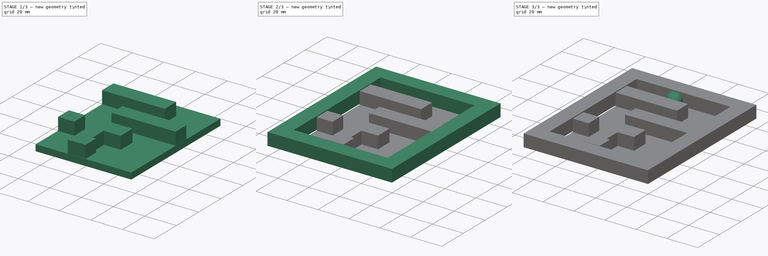
[diagram: build sequence overview — one tinted view per stage of 3, left to right]
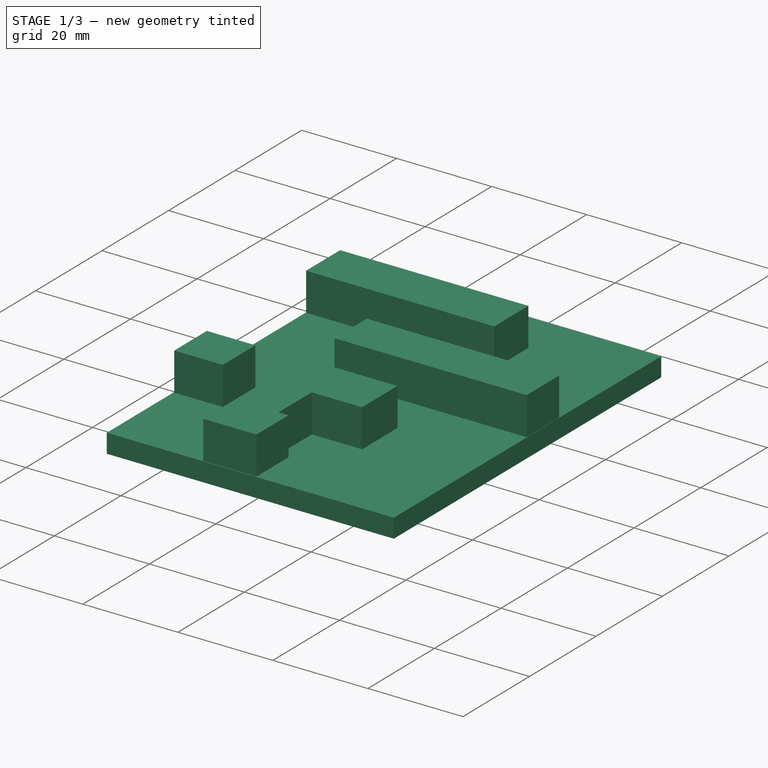
[diagram: stage 1 of 3 — iso view after this stage's code; geometry added in this stage tinted green]
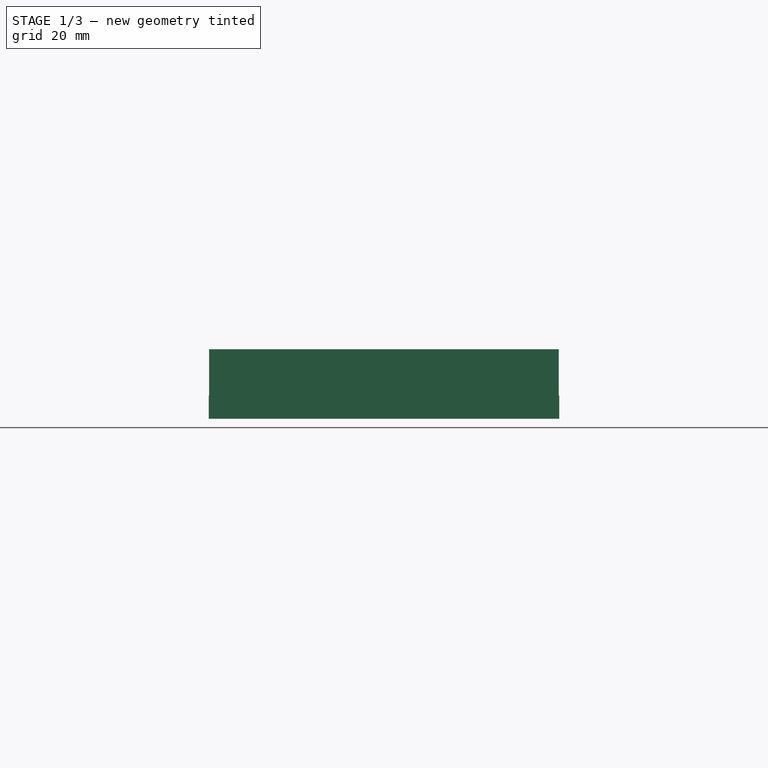
[diagram: stage 1 of 3 — front view after this stage's code; geometry added in this stage tinted green]
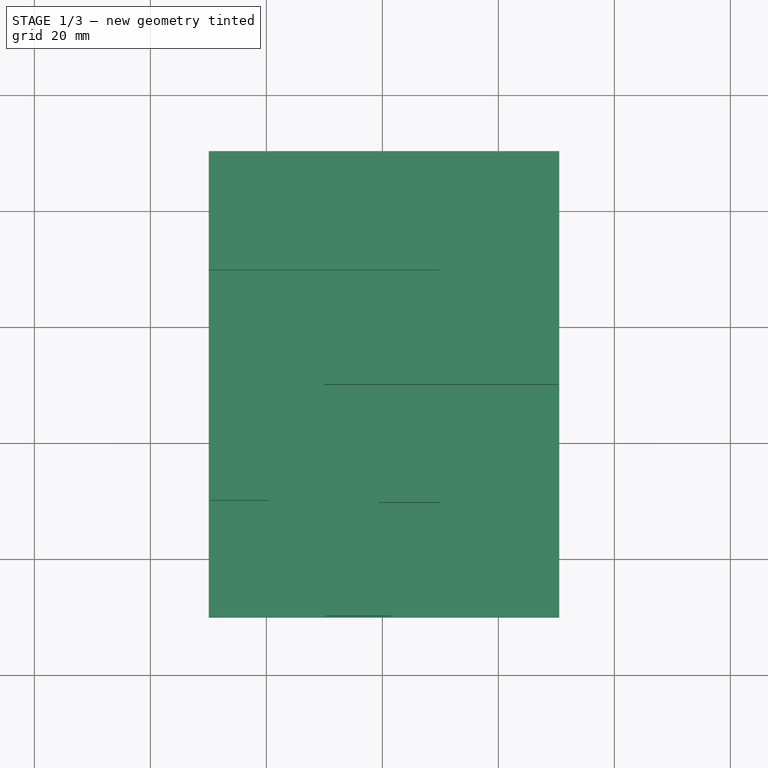
[diagram: stage 1 of 3 — top view after this stage's code; geometry added in this stage tinted green]
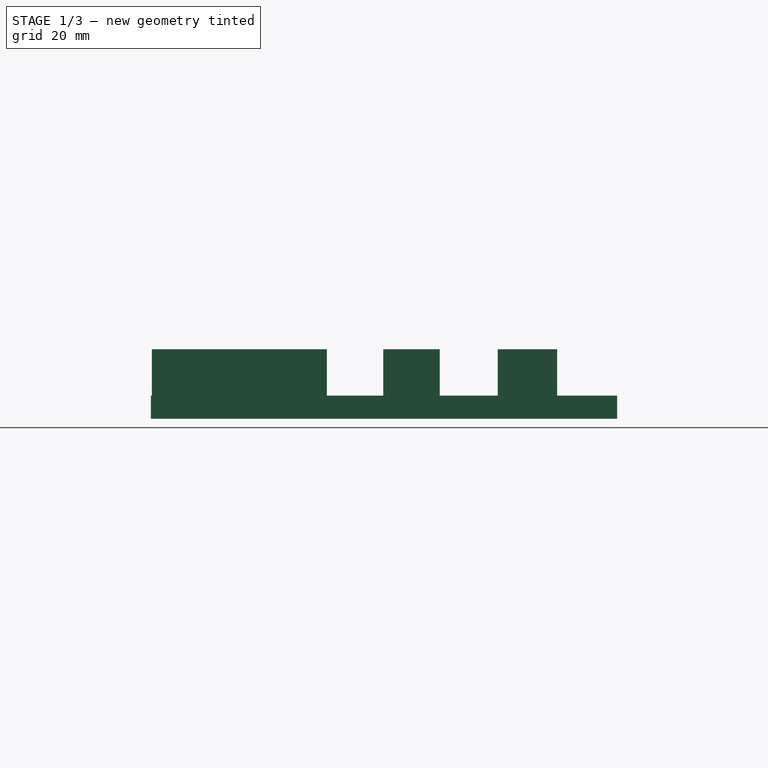
[diagram: stage 1 of 3 — right view after this stage's code; geometry added in this stage tinted green]
FCSTD DOCUMENT  (FreeCAD 0.21R33694 (Git))
Label: OJT1_T017_R03_ laberin
License: All rights reserved
LicenseURL: http://en.wikipedia.org/wiki/All_rights_reserved
objects: Sketcher::SketchObject×4, PartDesign::Pad×3, Part::Sphere×1, PartDesign::Pocket×1, PartDesign::SubShapeBinder×1, PartDesign::Body×1
note: 15 computed .brp shape members not serialized (recipe doc carries the construction recipe); baked Part::Feature solids carry a one-line shape summary decoded from their .brp

FEATURE [Sketcher::SketchObject] Sketch
  FullyConstrained = false
  MapMode = 5
  Support = -> [XY_Plane]
  sketch-geometry (4):
    g0: LineSegment StartX=-29.9305 StartY=30.324 StartZ=0 EndX=30.4857 EndY=30.324 EndZ=0
    g1: LineSegment StartX=30.4857 StartY=30.324 StartZ=0 EndX=30.4857 EndY=-50.0625 EndZ=0
    g2: LineSegment StartX=30.4857 StartY=-50.0625 StartZ=0 EndX=-29.9305 EndY=-50.0625 EndZ=0
    g3: LineSegment StartX=-29.9305 StartY=-50.0625 StartZ=0 EndX=-29.9305 EndY=30.324 EndZ=0
  constraints (8):
    c: Horizontal(g0)
    c: Coincident(g0,g1)
    c: Vertical(g1)
    c: Coincident(g1,g2)
    c: Horizontal(g2)
    c: Coincident(g2,g3)
    c: Coincident(g3,g0)
    c: Vertical(g3)
FEATURE [PartDesign::Pad] Pad
  Direction = (0,0,1)
  Length = 4
  Length2 = 10
  Profile = -> Sketch
  ReferenceAxis = -> Sketch [N_Axis]
  Type = 0
FEATURE [Sketcher::SketchObject] Sketch001
  FullyConstrained = false
  MapMode = 5
  Placement = pos=(0,0,4) rot=(0,0,1;0rad)
  Support = -> [Pad]
  sketch-geometry (20):
    g0: LineSegment StartX=-29.8639 StartY=19.9841 StartZ=0 EndX=9.75714 EndY=19.9841 EndZ=0
    g1: LineSegment StartX=9.75714 StartY=19.9841 StartZ=0 EndX=9.75714 EndY=9.75183 EndZ=0
    g2: LineSegment StartX=9.75714 StartY=9.75183 StartZ=0 EndX=-29.8639 EndY=9.75183 EndZ=0
    g3: LineSegment StartX=-29.8639 StartY=9.75183 StartZ=0 EndX=-29.8639 EndY=19.9841 EndZ=0
    g4: LineSegment StartX=30.4033 StartY=-0.265721 StartZ=0 EndX=-10.0469 EndY=-0.265721 EndZ=0
    g5: LineSegment StartX=-10.0469 StartY=-0.265721 StartZ=0 EndX=-10.0469 EndY=-9.99901 EndZ=0
    g6: LineSegment StartX=-10.0469 StartY=-9.99901 StartZ=0 EndX=30.4033 EndY=-9.99901 EndZ=0
    g7: LineSegment StartX=30.4033 StartY=-9.99901 StartZ=0 EndX=30.4033 EndY=-0.265721 EndZ=0
    g8: LineSegment StartX=-9.73698 StartY=-49.9008 StartZ=0 EndX=-9.73698 EndY=-19.728 EndZ=0
    g9: LineSegment StartX=-9.73698 StartY=-19.728 StartZ=0 EndX=10.0099 EndY=-19.728 EndZ=0
    g10: LineSegment StartX=10.0099 StartY=-19.728 StartZ=0 EndX=10.0099 EndY=-30.3451 EndZ=0
    g11: LineSegment StartX=10.0099 StartY=-30.3451 StartZ=0 EndX=-0.607156 EndY=-30.3451 EndZ=0
    g12: LineSegment StartX=-0.607156 StartY=-30.3451 StartZ=0 EndX=-0.607156 EndY=-40.2859 EndZ=0
    g13: LineSegment StartX=-0.607156 StartY=-40.2859 StartZ=0 EndX=1.47293 EndY=-40.2859 EndZ=0
    g14: LineSegment StartX=1.47293 StartY=-40.2859 StartZ=0 EndX=1.47293 EndY=-49.9008 EndZ=0
    g15: LineSegment StartX=1.47293 StartY=-49.9008 StartZ=0 EndX=-9.73698 EndY=-49.9008 EndZ=0
    g16: LineSegment StartX=-29.7993 StartY=-20.1779 StartZ=0 EndX=-19.5662 EndY=-20.1779 EndZ=0
    g17: LineSegment StartX=-19.5662 StartY=-20.1779 StartZ=0 EndX=-19.5662 EndY=-29.9765 EndZ=0
    g18: LineSegment StartX=-19.5662 StartY=-29.9765 StartZ=0 EndX=-29.7993 EndY=-29.9765 EndZ=0
    g19: LineSegment StartX=-29.7993 StartY=-29.9765 StartZ=0 EndX=-29.7993 EndY=-20.1779 EndZ=0
  constraints (40):
    c: Horizontal(g0)
    c: Coincident(g0,g1)
    c: Vertical(g1)
    c: Coincident(g1,g2)
    c: Horizontal(g2)
    c: Coincident(g2,g3)
    c: Coincident(g3,g0)
    c: Vertical(g3)
    c: Horizontal(g4)
    c: Coincident(g4,g5)
    c: Vertical(g5)
    c: Coincident(g5,g6)
    c: Horizontal(g6)
    c: Coincident(g6,g7)
    c: Coincident(g7,g4)
    c: Vertical(g7)
    c: Vertical(g8)
    c: Coincident(g8,g9)
    c: Horizontal(g9)
    c: Coincident(g9,g10)
    c: Vertical(g10)
    c: Coincident(g10,g11)
    c: Horizontal(g11)
    c: Coincident(g11,g12)
    c: Vertical(g12)
    c: Coincident(g12,g13)
    c: Horizontal(g13)
    c: Coincident(g13,g14)
    c: Vertical(g14)
    c: Coincident(g14,g15)
    c: Coincident(g15,g8)
    c: Horizontal(g15)
    c: Horizontal(g16)
    c: Coincident(g16,g17)
    c: Vertical(g17)
    c: Coincident(g17,g18)
    c: Horizontal(g18)
    c: Coincident(g18,g19)
    c: Coincident(g19,g16)
    c: Vertical(g19)
FEATURE [PartDesign::Pad] Pad001
  BaseFeature = -> Pad
  Direction = (0,0,1)
  Length = 8
  Length2 = 10
  Profile = -> Sketch001
  ReferenceAxis = -> Sketch001 [N_Axis]
  Type = 0
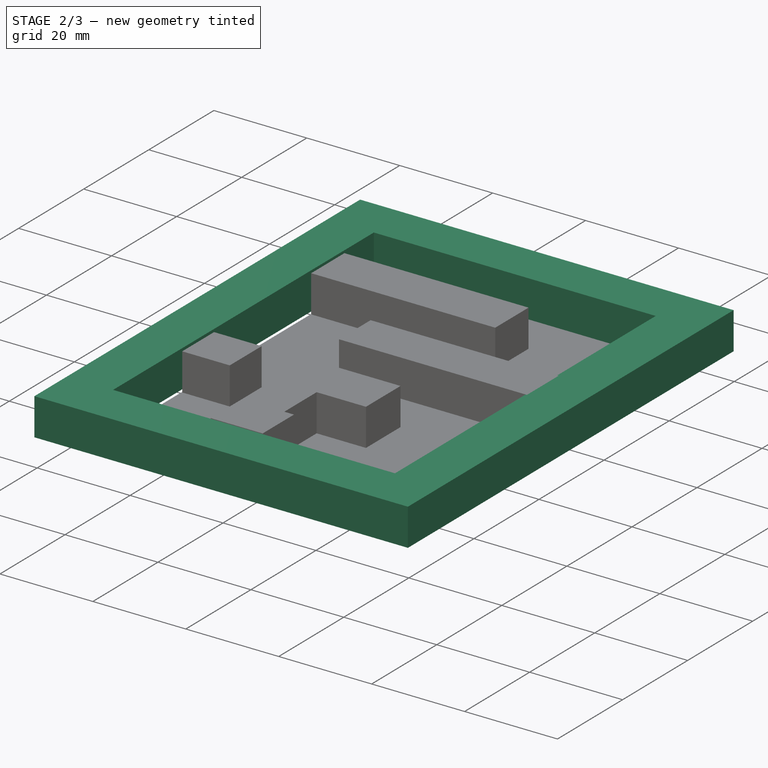
[diagram: stage 2 of 3 — iso view after this stage's code; geometry added in this stage tinted green]
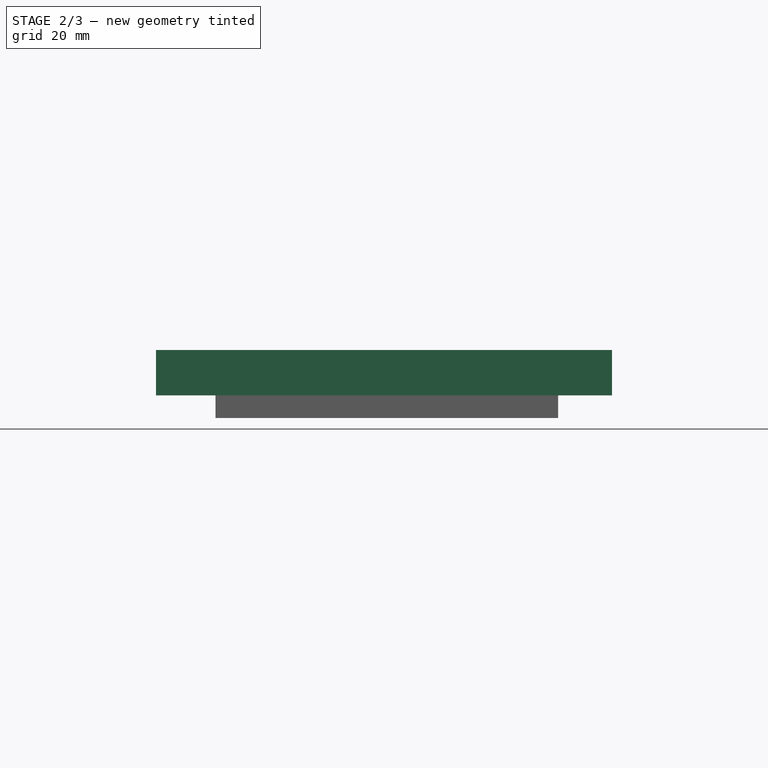
[diagram: stage 2 of 3 — front view after this stage's code; geometry added in this stage tinted green]
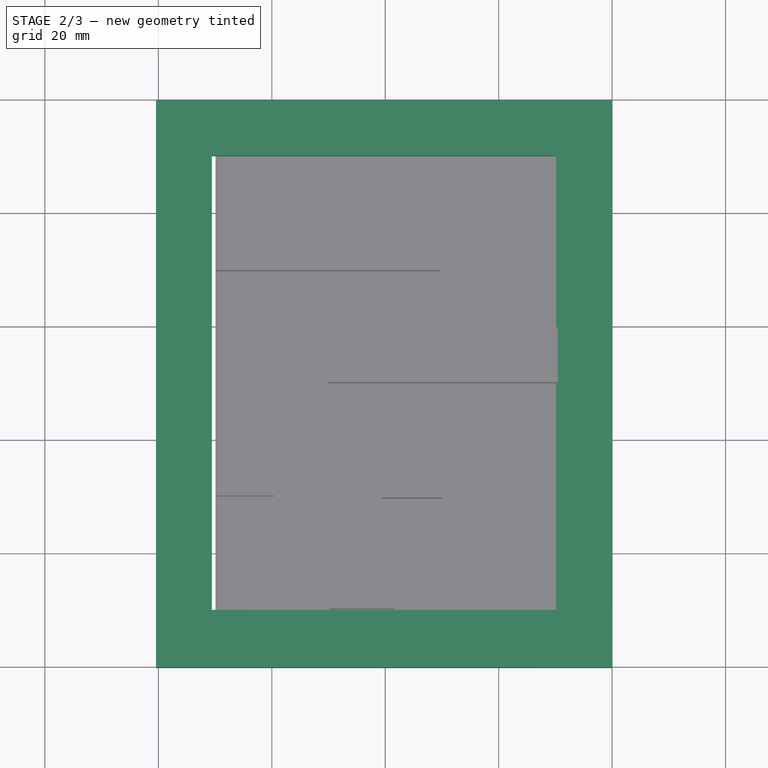
[diagram: stage 2 of 3 — top view after this stage's code; geometry added in this stage tinted green]
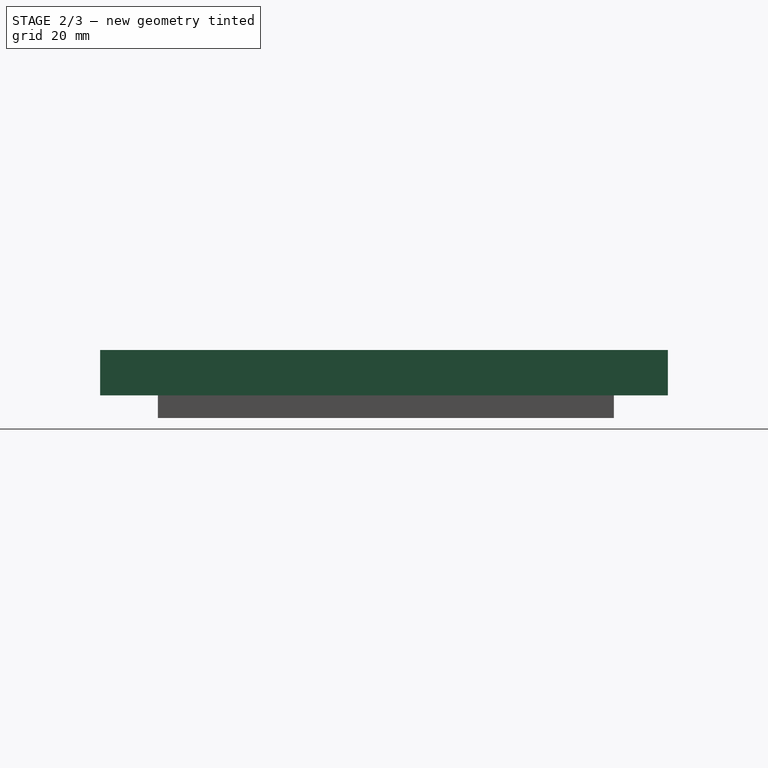
[diagram: stage 2 of 3 — right view after this stage's code; geometry added in this stage tinted green]
FEATURE [Sketcher::SketchObject] Sketch002
  FullyConstrained = false
  MapMode = 5
  Placement = pos=(0,0,4) rot=(0,0,1;0rad)
  Support = -> [Pad001]
  sketch-geometry (8):
    g0: LineSegment StartX=-40.412 StartY=39.8558 StartZ=0 EndX=-40.412 EndY=-60.2481 EndZ=0
    g1: LineSegment StartX=-40.412 StartY=-60.2481 StartZ=0 EndX=39.9744 EndY=-60.2481 EndZ=0
    g2: LineSegment StartX=39.9744 StartY=-60.2481 StartZ=0 EndX=39.9744 EndY=39.8558 EndZ=0
    g3: LineSegment StartX=39.9744 StartY=39.8558 StartZ=0 EndX=-40.412 EndY=39.8558 EndZ=0
    g4: LineSegment StartX=-30.5533 StartY=29.9971 StartZ=0 EndX=-30.5533 EndY=-50.1365 EndZ=0
    g5: LineSegment StartX=-30.5533 StartY=-50.1365 StartZ=0 EndX=30.1157 EndY=-50.1365 EndZ=0
    g6: LineSegment StartX=30.1157 StartY=-50.1365 StartZ=0 EndX=30.1157 EndY=29.9971 EndZ=0
    g7: LineSegment StartX=30.1157 StartY=29.9971 StartZ=0 EndX=-30.5533 EndY=29.9971 EndZ=0
  constraints (16):
    c: Vertical(g0)
    c: Coincident(g0,g1)
    c: Horizontal(g1)
    c: Coincident(g1,g2)
    c: Vertical(g2)
    c: Coincident(g2,g3)
    c: Coincident(g3,g0)
    c: Horizontal(g3)
    c: Vertical(g4)
    c: Coincident(g4,g5)
    c: Horizontal(g5)
    c: Coincident(g5,g6)
    c: Vertical(g6)
    c: Coincident(g6,g7)
    c: Coincident(g7,g4)
    c: Horizontal(g7)
FEATURE [PartDesign::Pad] Pad002
  BaseFeature = -> Pad001
  Direction = (0,0,1)
  Length = 8
  Length2 = 10
  Profile = -> Sketch002
  ReferenceAxis = -> Sketch002 [N_Axis]
  Type = 0
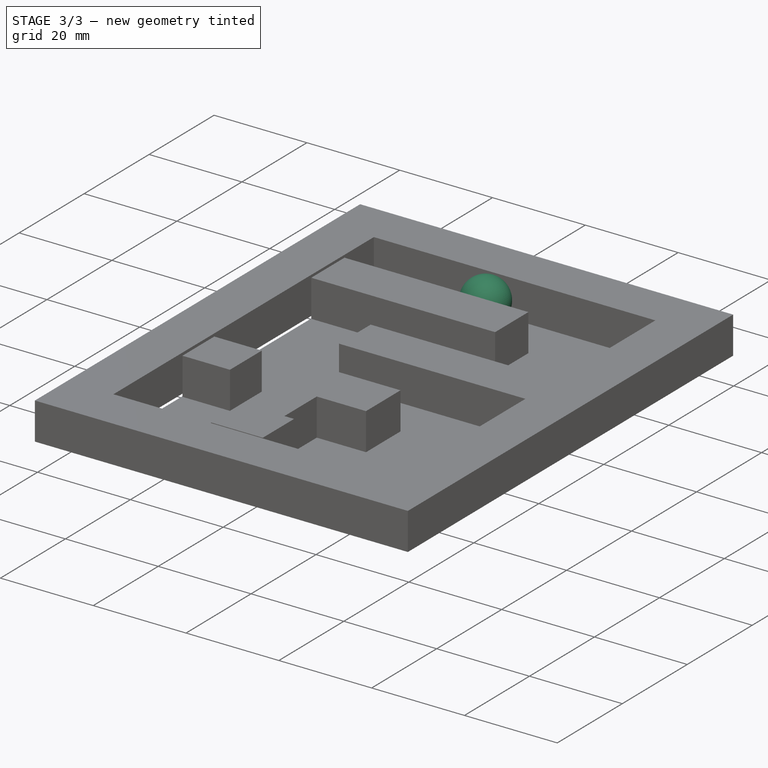
[diagram: stage 3 of 3 — iso view after this stage's code; geometry added in this stage tinted green]
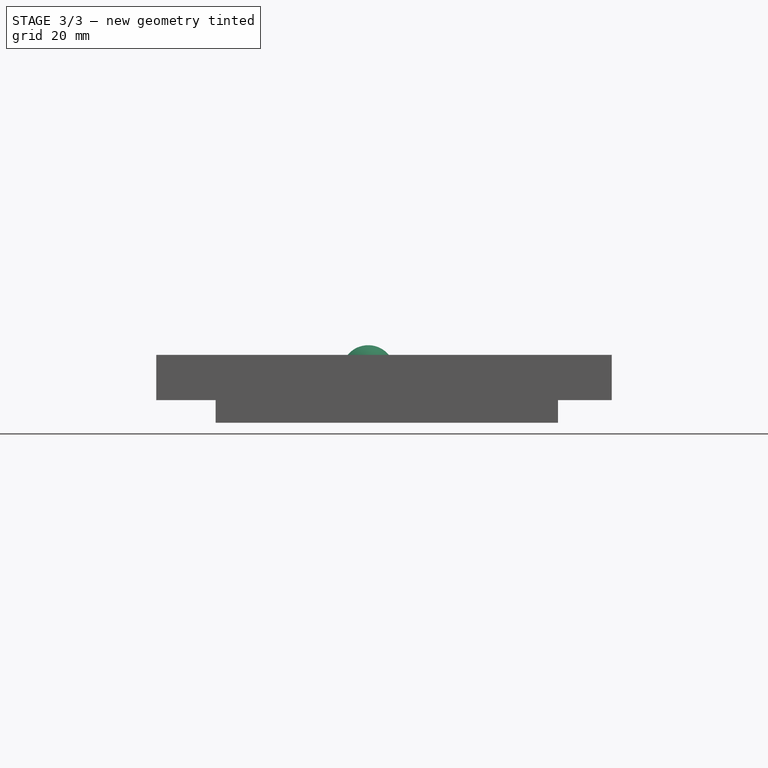
[diagram: stage 3 of 3 — front view after this stage's code; geometry added in this stage tinted green]
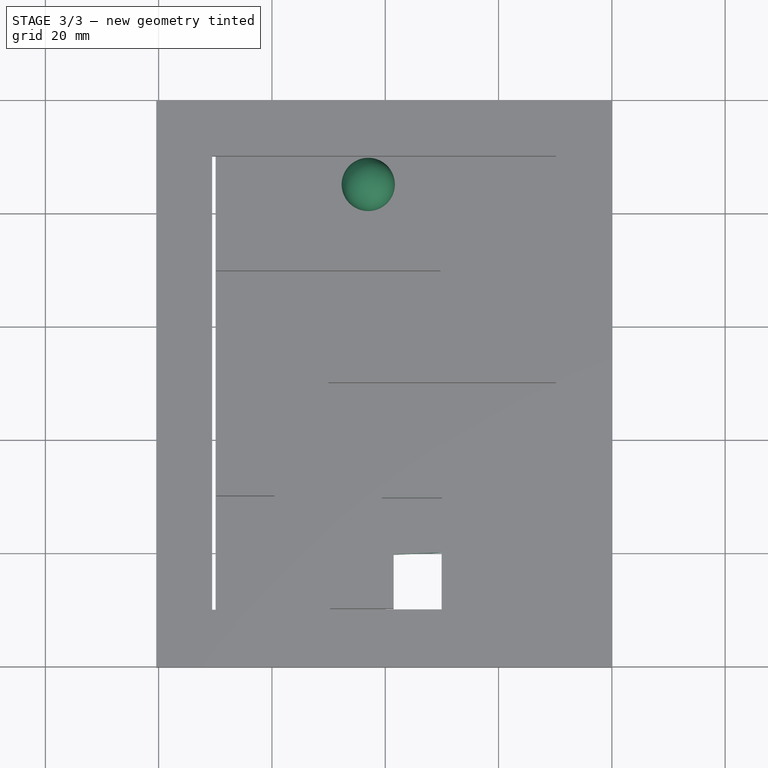
[diagram: stage 3 of 3 — top view after this stage's code; geometry added in this stage tinted green]
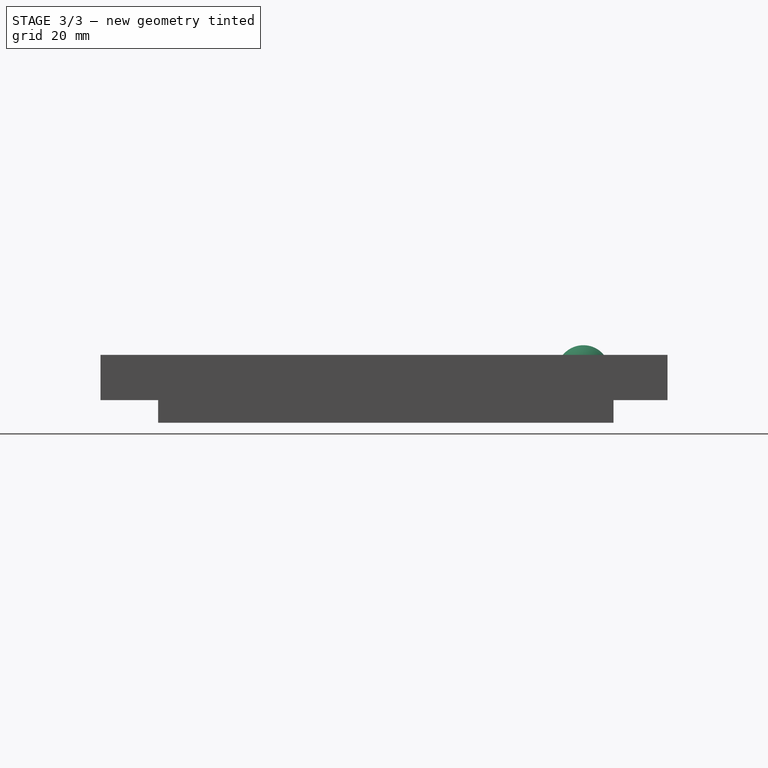
[diagram: stage 3 of 3 — right view after this stage's code; geometry added in this stage tinted green]
FEATURE [Part::Sphere] Sphere
  Angle1 = -90
  Angle2 = 90
  Angle3 = 360
  AttacherType = Attacher::AttachEngine3D
  Placement = pos=(-3,25,9) rot=(0,0,1;0rad)
  Radius = 4.7
FEATURE [Sketcher::SketchObject] Sketch003
  FullyConstrained = false
  MapMode = 5
  Placement = pos=(0,0,4) rot=(0,0,1;0rad)
  Support = -> [Pad002]
  sketch-geometry (4):
    g0: LineSegment StartX=-0.891509 StartY=-40.3464 StartZ=0 EndX=1e-16 EndY=-49.9383 EndZ=0
    g1: LineSegment StartX=1e-16 StartY=-49.9383 StartZ=0 EndX=9.95833 EndY=-49.9383 EndZ=0
    g2: LineSegment StartX=9.95833 StartY=-49.9383 StartZ=0 EndX=9.95833 EndY=-39.8747 EndZ=0
    g3: LineSegment StartX=9.95833 StartY=-39.8747 StartZ=0 EndX=-0.891509 EndY=-40.3464 EndZ=0
  constraints (7):
    c: PointOnObject(g0,g-2)
    c: Coincident(g0,g1)
    c: Horizontal(g1)
    c: Coincident(g1,g2)
    c: Vertical(g2)
    c: Coincident(g2,g3)
    c: Coincident(g3,g0)
FEATURE [PartDesign::Pocket] Pocket
  BaseFeature = -> Pad002
  Direction = (0,0,-1)
  Length = 12
  Length2 = 5
  Profile = -> Sketch003
  ReferenceAxis = -> Sketch003 [N_Axis]
  Type = 0
FEATURE [PartDesign::SubShapeBinder] Binder
  BindCopyOnChange = 0
  BindMode = 0
  ClaimChildren = false
  Context = -> Body [Binder.]
  Fuse = false
  MakeFace = true
  OffsetFill = false
  OffsetIntersection = false
  OffsetJoinType = 0
  OffsetOpenResult = false
  PartialLoad = false
  Relative = true
  Support = -> [Pocket[Face7]]
  _Version = 2
FEATURE [PartDesign::Body] Body
  Group = -> [Sketch,Pad,Sketch001,Pad001,Sketch002,Pad002,Sketch003,Pocket,Binder]
  Origin = -> Origin
  Tip = -> Pocket
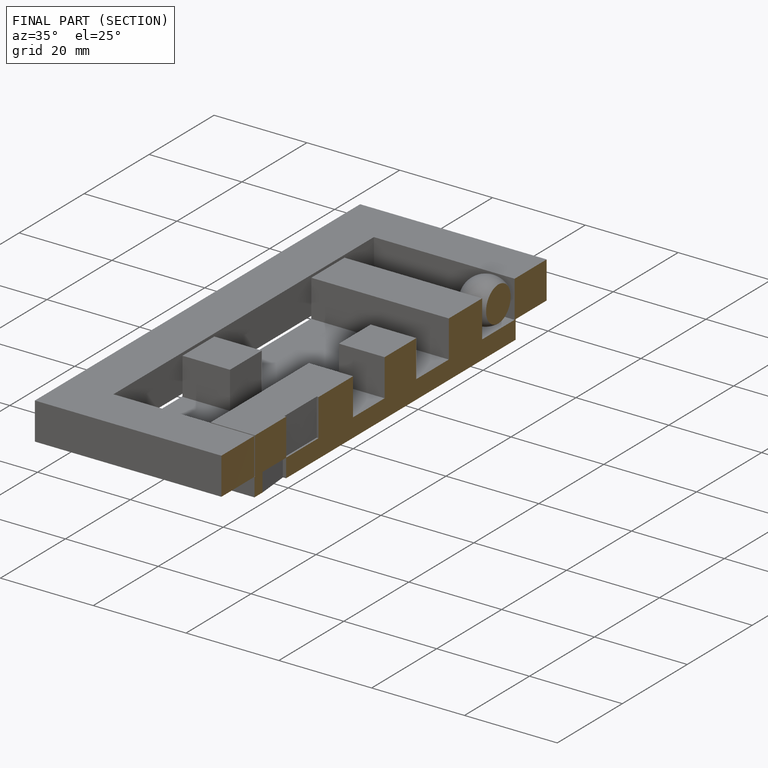
[diagram: finished part — half-section view (interior)]
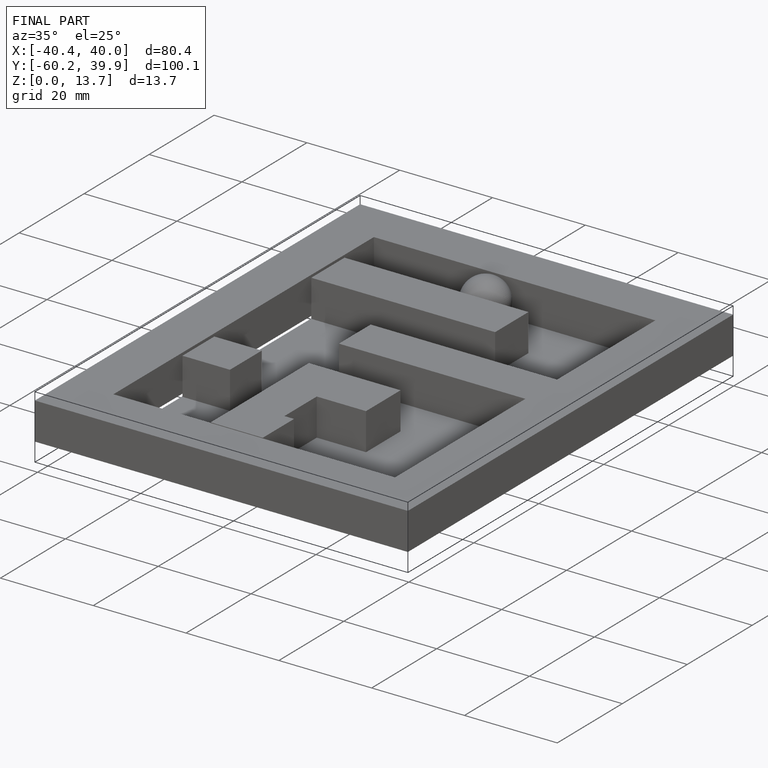
[diagram: finished part — iso view with bounding-box wireframe]
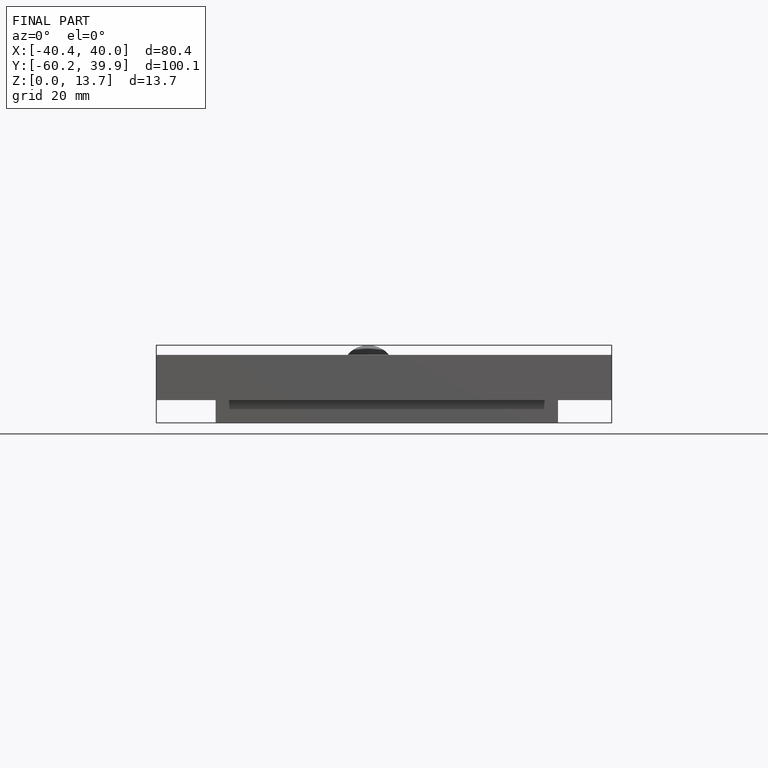
[diagram: finished part — front view with bounding-box wireframe]
